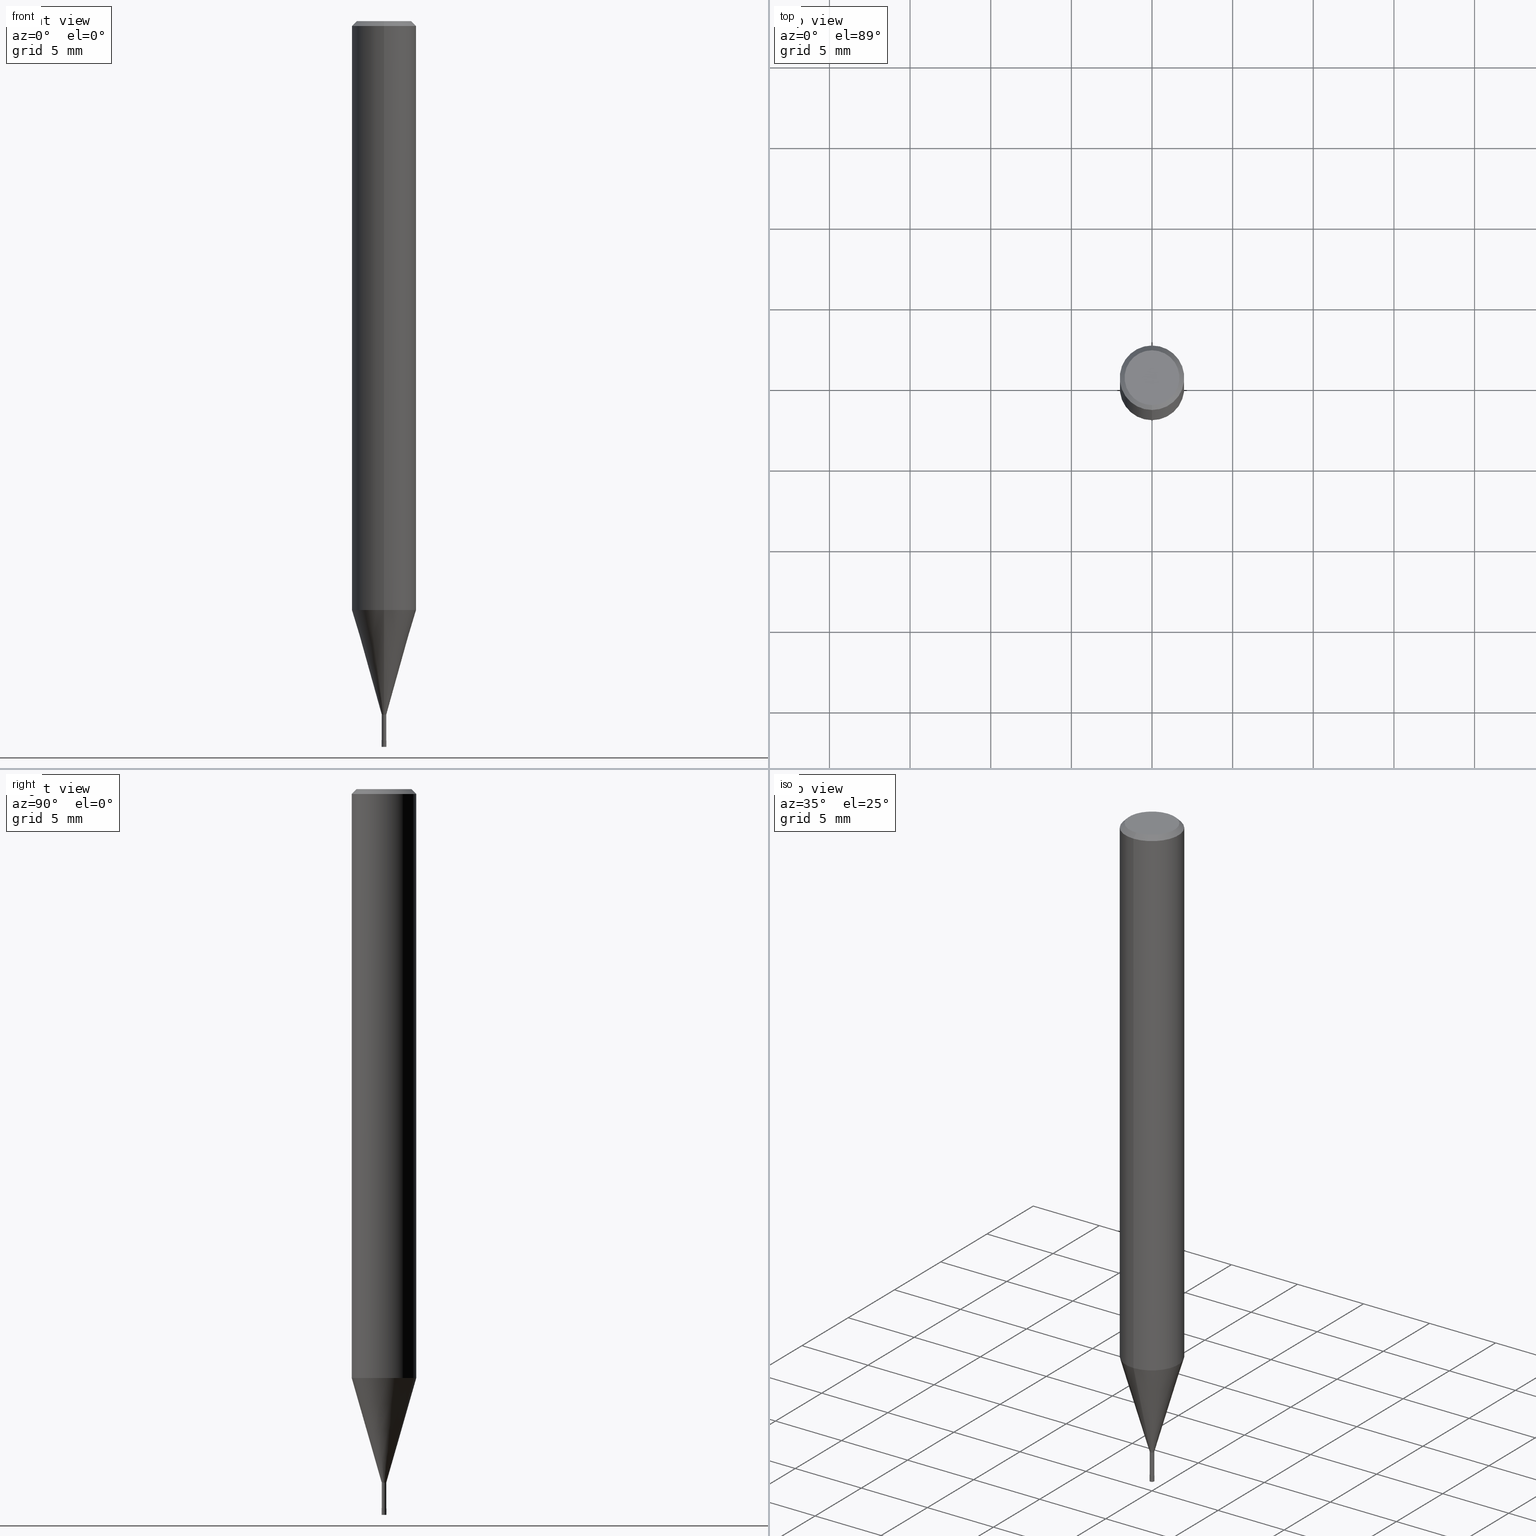
[diagram: canonical four-view strip — front | top / right | iso, engineering-drawing reading convention]
A machine part, canonical four-view strip (front | top / right | iso — engineering-drawing reading convention). The complete STEP part file that produces these views, byte-faithful:
ISO-10303-21;
HEADER;
FILE_DESCRIPTION(('no description'),'unknown implementation level');
FILE_NAME('HLS2003-020-Huellk.stp','  ',('CIMSOURCE GmbH'),('CADClick - KiM GmbH - www.kimweb.de'),'unknown preprocess','ACIS','unknown authorization');
FILE_SCHEMA(('automotive_design'));
ENDSEC;
DATA;
#1=MECHANICAL_DESIGN_GEOMETRIC_PRESENTATION_REPRESENTATION(' ',(#14,#15,#16,#17,#18,#19,#20,#21,#22,#23,#24,#25,#26,#27,#28,#29,#30,#31,#32,#33,#34,#35,#36,#37,#38,#39,#40,#41,#42,#43,#44,#45,#46,#47,#48,#49,#50,#51,#52,#53,#54,#55,#56,#57,#58,#59,#60,#61,#62,#63,#64,#65,#66,#67,#68,#69,#70,#71,#72),#10);
#2=PRODUCT_DEFINITION_CONTEXT('',#73,'design');
#3=APPLICATION_PROTOCOL_DEFINITION('INTERNATIONAL STANDARD','automotive_design',1994,#73);
#4=PRODUCT_CATEGORY_RELATIONSHIP('NONE','NONE',#74,#75);
#5=SHAPE_DEFINITION_REPRESENTATION(#76,#77);
#6=PRODUCT_DEFINITION_CONTEXT('',#78,'design');
#7=APPLICATION_PROTOCOL_DEFINITION('INTERNATIONAL STANDARD','automotive_design',1994,#78);
#8=PRODUCT_CATEGORY_RELATIONSHIP('NONE','NONE',#79,#80);
#9=SHAPE_DEFINITION_REPRESENTATION(#81,#82);
#10= (GEOMETRIC_REPRESENTATION_CONTEXT(3)GLOBAL_UNCERTAINTY_ASSIGNED_CONTEXT((#85))GLOBAL_UNIT_ASSIGNED_CONTEXT((#87,#88,#89))REPRESENTATION_CONTEXT('NONE','WORKSPACE'));
#14=STYLED_ITEM('',(#91),#92);
#15=STYLED_ITEM('',(#93),#94);
#16=STYLED_ITEM('',(#95),#96);
#17=STYLED_ITEM('',(#97),#98);
#18=STYLED_ITEM('',(#99),#100);
#19=STYLED_ITEM('',(#101),#102);
#20=STYLED_ITEM('',(#103),#104);
#21=STYLED_ITEM('',(#105),#106);
#22=STYLED_ITEM('',(#107),#108);
#23=STYLED_ITEM('',(#109),#110);
#24=STYLED_ITEM('',(#111),#112);
#25=STYLED_ITEM('',(#113),#114);
#26=STYLED_ITEM('',(#115),#116);
#27=STYLED_ITEM('',(#117),#118);
#28=STYLED_ITEM('',(#119),#120);
#29=STYLED_ITEM('',(#121),#122);
#30=STYLED_ITEM('',(#123),#124);
#31=STYLED_ITEM('',(#125),#126);
#32=STYLED_ITEM('',(#127),#128);
#33=STYLED_ITEM('',(#129),#130);
#34=STYLED_ITEM('',(#131),#132);
#35=STYLED_ITEM('',(#133),#134);
#36=STYLED_ITEM('',(#135),#136);
#37=STYLED_ITEM('',(#137),#138);
#38=STYLED_ITEM('',(#139),#140);
#39=STYLED_ITEM('',(#141),#142);
#40=STYLED_ITEM('',(#143),#144);
#41=STYLED_ITEM('',(#145),#146);
#42=STYLED_ITEM('',(#147),#148);
#43=STYLED_ITEM('',(#149),#150);
#44=STYLED_ITEM('',(#151),#152);
#45=STYLED_ITEM('',(#153),#154);
#46=STYLED_ITEM('',(#155),#156);
#47=STYLED_ITEM('',(#157),#158);
#48=STYLED_ITEM('',(#159),#160);
#49=STYLED_ITEM('',(#161),#162);
#50=STYLED_ITEM('',(#163),#164);
#51=STYLED_ITEM('',(#165),#166);
#52=STYLED_ITEM('',(#167),#168);
#53=STYLED_ITEM('',(#169),#170);
#54=STYLED_ITEM('',(#171),#172);
#55=STYLED_ITEM('',(#173),#174);
#56=STYLED_ITEM('',(#175),#176);
#57=STYLED_ITEM('',(#177),#178);
#58=STYLED_ITEM('',(#179),#180);
#59=STYLED_ITEM('',(#181),#182);
#60=STYLED_ITEM('',(#183),#184);
#61=STYLED_ITEM('',(#185),#186);
#62=STYLED_ITEM('',(#187),#188);
#63=STYLED_ITEM('',(#189),#190);
#64=STYLED_ITEM('',(#191),#192);
#65=STYLED_ITEM('',(#193),#194);
#66=STYLED_ITEM('',(#195),#196);
#67=STYLED_ITEM('',(#197),#198);
#68=STYLED_ITEM('',(#199),#200);
#69=STYLED_ITEM('',(#201),#202);
#70=STYLED_ITEM('',(#203),#204);
#71=STYLED_ITEM('',(#205),#206);
#72=STYLED_ITEM('',(#207),#208);
#73=APPLICATION_CONTEXT(' ');
#74=PRODUCT_CATEGORY('part','NONE');
#75=PRODUCT_RELATED_PRODUCT_CATEGORY('detail',' ',(#209));
#76=PRODUCT_DEFINITION_SHAPE('NONE','NONE',#210);
#77=ADVANCED_BREP_SHAPE_REPRESENTATION('1',(#202,#211),#10);
#78=APPLICATION_CONTEXT(' ');
#79=PRODUCT_CATEGORY('part','NONE');
#80=PRODUCT_RELATED_PRODUCT_CATEGORY('detail',' ',(#212));
#81=PRODUCT_DEFINITION_SHAPE('NONE','NONE',#213);
#82=ADVANCED_BREP_SHAPE_REPRESENTATION('2',(#122,#214),#10);
#85=UNCERTAINTY_MEASURE_WITH_UNIT(LENGTH_MEASURE(1.0E-006),#87,'','');
#87= (CONVERSION_BASED_UNIT('MILLIMETRE',#217)LENGTH_UNIT()NAMED_UNIT(#220));
#88= (NAMED_UNIT(#222)PLANE_ANGLE_UNIT()SI_UNIT($,.RADIAN.));
#89= (NAMED_UNIT(#222)SOLID_ANGLE_UNIT()SI_UNIT($,.STERADIAN.));
#91=PRESENTATION_STYLE_ASSIGNMENT((#228));
#92=VERTEX_POINT('',#229);
#93=PRESENTATION_STYLE_ASSIGNMENT((#230));
#94=EDGE_CURVE('',#168,#170,#231,.T.);
#95=PRESENTATION_STYLE_ASSIGNMENT((#232));
#96=EDGE_CURVE('',#92,#208,#233,.T.);
#97=PRESENTATION_STYLE_ASSIGNMENT((#234));
#98=EDGE_CURVE('',#170,#140,#235,.T.);
#99=PRESENTATION_STYLE_ASSIGNMENT((#236));
#100=EDGE_CURVE('',#166,#200,#237,.T.);
#101=PRESENTATION_STYLE_ASSIGNMENT((#238));
#102=ADVANCED_FACE('',(#239,#240),#241,.T.);
#103=PRESENTATION_STYLE_ASSIGNMENT((#242));
#104=EDGE_CURVE('',#186,#166,#243,.T.);
#105=PRESENTATION_STYLE_ASSIGNMENT((#244));
#106=EDGE_CURVE('',#160,#174,#245,.T.);
#107=PRESENTATION_STYLE_ASSIGNMENT((#246));
#108=ADVANCED_FACE('',(#247),#248,.T.);
#109=PRESENTATION_STYLE_ASSIGNMENT((#249));
#110=EDGE_CURVE('',#92,#180,#250,.T.);
#111=PRESENTATION_STYLE_ASSIGNMENT((#251));
#112=EDGE_CURVE('',#174,#160,#252,.T.);
#113=PRESENTATION_STYLE_ASSIGNMENT((#253));
#114=ADVANCED_FACE('',(#254),#255,.T.);
#115=PRESENTATION_STYLE_ASSIGNMENT((#256));
#116=ADVANCED_FACE('',(#257),#258,.T.);
#117=PRESENTATION_STYLE_ASSIGNMENT((#259));
#118=VERTEX_POINT('',#260);
#119=PRESENTATION_STYLE_ASSIGNMENT((#261));
#120=EDGE_CURVE('',#144,#180,#262,.T.);
#121=PRESENTATION_STYLE_ASSIGNMENT((#263));
#122=MANIFOLD_SOLID_BREP('2',#264);
#123=PRESENTATION_STYLE_ASSIGNMENT((#265));
#124=ADVANCED_FACE('',(#266),#267,.T.);
#125=PRESENTATION_STYLE_ASSIGNMENT((#268));
#126=ADVANCED_FACE('',(#269),#270,.T.);
#127=PRESENTATION_STYLE_ASSIGNMENT((#271));
#128=ADVANCED_FACE('',(#272),#273,.T.);
#129=PRESENTATION_STYLE_ASSIGNMENT((#274));
#130=ADVANCED_FACE('',(#275),#276,.T.);
#131=PRESENTATION_STYLE_ASSIGNMENT((#277));
#132=ADVANCED_FACE('',(#278),#279,.T.);
#133=PRESENTATION_STYLE_ASSIGNMENT((#280));
#134=ADVANCED_FACE('',(#281),#282,.T.);
#135=PRESENTATION_STYLE_ASSIGNMENT((#283));
#136=ADVANCED_FACE('',(#284),#285,.T.);
#137=PRESENTATION_STYLE_ASSIGNMENT((#286));
#138=EDGE_CURVE('',#144,#208,#287,.T.);
#139=PRESENTATION_STYLE_ASSIGNMENT((#288));
#140=VERTEX_POINT('',#289);
#141=PRESENTATION_STYLE_ASSIGNMENT((#290));
#142=EDGE_CURVE('',#118,#150,#291,.T.);
#143=PRESENTATION_STYLE_ASSIGNMENT((#292));
#144=VERTEX_POINT('',#293);
#145=PRESENTATION_STYLE_ASSIGNMENT((#294));
#146=EDGE_CURVE('',#200,#158,#295,.T.);
#147=PRESENTATION_STYLE_ASSIGNMENT((#296));
#148=EDGE_CURVE('',#180,#92,#297,.T.);
#149=PRESENTATION_STYLE_ASSIGNMENT((#298));
#150=VERTEX_POINT('',#299);
#151=PRESENTATION_STYLE_ASSIGNMENT((#300));
#152=VERTEX_POINT('',#301);
#153=PRESENTATION_STYLE_ASSIGNMENT((#302));
#154=EDGE_CURVE('',#140,#152,#303,.T.);
#155=PRESENTATION_STYLE_ASSIGNMENT((#304));
#156=EDGE_CURVE('',#140,#170,#305,.T.);
#157=PRESENTATION_STYLE_ASSIGNMENT((#306));
#158=VERTEX_POINT('',#307);
#159=PRESENTATION_STYLE_ASSIGNMENT((#308));
#160=VERTEX_POINT('',#309);
#161=PRESENTATION_STYLE_ASSIGNMENT((#310));
#162=EDGE_CURVE('',#150,#118,#311,.T.);
#163=PRESENTATION_STYLE_ASSIGNMENT((#312));
#164=EDGE_CURVE('',#208,#144,#313,.T.);
#165=PRESENTATION_STYLE_ASSIGNMENT((#314));
#166=VERTEX_POINT('',#315);
#167=PRESENTATION_STYLE_ASSIGNMENT((#316));
#168=VERTEX_POINT('',#317);
#169=PRESENTATION_STYLE_ASSIGNMENT((#318));
#170=VERTEX_POINT('',#319);
#171=PRESENTATION_STYLE_ASSIGNMENT((#320));
#172=EDGE_CURVE('',#152,#168,#321,.T.);
#173=PRESENTATION_STYLE_ASSIGNMENT((#322));
#174=VERTEX_POINT('',#323);
#175=PRESENTATION_STYLE_ASSIGNMENT((#324));
#176=ADVANCED_FACE('',(#325),#326,.T.);
#177=PRESENTATION_STYLE_ASSIGNMENT((#327));
#178=EDGE_CURVE('',#152,#160,#328,.T.);
#179=PRESENTATION_STYLE_ASSIGNMENT((#329));
#180=VERTEX_POINT('',#330);
#181=PRESENTATION_STYLE_ASSIGNMENT((#331));
#182=EDGE_CURVE('',#118,#186,#332,.T.);
#183=PRESENTATION_STYLE_ASSIGNMENT((#333));
#184=EDGE_CURVE('',#200,#166,#334,.T.);
#185=PRESENTATION_STYLE_ASSIGNMENT((#335));
#186=VERTEX_POINT('',#336);
#187=PRESENTATION_STYLE_ASSIGNMENT((#337));
#188=ADVANCED_FACE('',(#338),#339,.T.);
#189=PRESENTATION_STYLE_ASSIGNMENT((#340));
#190=EDGE_CURVE('',#186,#158,#341,.T.);
#191=PRESENTATION_STYLE_ASSIGNMENT((#342));
#192=EDGE_CURVE('',#158,#150,#343,.T.);
#193=PRESENTATION_STYLE_ASSIGNMENT((#344));
#194=EDGE_CURVE('',#168,#152,#345,.T.);
#195=PRESENTATION_STYLE_ASSIGNMENT((#346));
#196=EDGE_CURVE('',#158,#186,#347,.T.);
#197=PRESENTATION_STYLE_ASSIGNMENT((#348));
#198=ADVANCED_FACE('',(#349),#350,.T.);
#199=PRESENTATION_STYLE_ASSIGNMENT((#351));
#200=VERTEX_POINT('',#352);
#201=PRESENTATION_STYLE_ASSIGNMENT((#353));
#202=MANIFOLD_SOLID_BREP('1',#354);
#203=PRESENTATION_STYLE_ASSIGNMENT((#355));
#204=ADVANCED_FACE('',(#356),#357,.T.);
#205=PRESENTATION_STYLE_ASSIGNMENT((#358));
#206=EDGE_CURVE('',#174,#168,#359,.T.);
#207=PRESENTATION_STYLE_ASSIGNMENT((#360));
#208=VERTEX_POINT('',#361);
#209=PRODUCT('1','1','PART-1-DESC',(#362));
#210=PRODUCT_DEFINITION('NONE','NONE',#363,#2);
#211=AXIS2_PLACEMENT_3D('',#364,#365,#366);
#212=PRODUCT('2','2','PART-2-DESC',(#367));
#213=PRODUCT_DEFINITION('NONE','NONE',#368,#6);
#214=AXIS2_PLACEMENT_3D('',#369,#370,#371);
#217=LENGTH_MEASURE_WITH_UNIT(LENGTH_MEASURE(1.0),#372);
#220=DIMENSIONAL_EXPONENTS(1.0,0.0,0.0,0.0,0.0,0.0,0.0);
#222=DIMENSIONAL_EXPONENTS(0.0,0.0,0.0,0.0,0.0,0.0,0.0);
#228=POINT_STYLE(' ',#373,POSITIVE_LENGTH_MEASURE(1.0E-006),#374);
#229=CARTESIAN_POINT('',(0.0,0.1499,-44.6));
#230=CURVE_STYLE('',#375,POSITIVE_LENGTH_MEASURE(1.0E-006),#376);
#231=LINE('',#377,#378);
#232=CURVE_STYLE('',#379,POSITIVE_LENGTH_MEASURE(1.0E-006),#380);
#233=LINE('',#381,#382);
#234=CURVE_STYLE('',#383,POSITIVE_LENGTH_MEASURE(1.0E-006),#384);
#235=CIRCLE('',#385,1.7);
#236=CURVE_STYLE('',#386,POSITIVE_LENGTH_MEASURE(1.0E-006),#387);
#237=CIRCLE('',#388,0.13995);
#238=SURFACE_STYLE_USAGE(.BOTH.,#389);
#239=FACE_OUTER_BOUND('',#390,.T.);
#240=FACE_BOUND('',#391,.T.);
#241=PLANE('',#392);
#242=CURVE_STYLE('',#393,POSITIVE_LENGTH_MEASURE(1.0E-006),#394);
#243=LINE('',#395,#396);
#244=CURVE_STYLE('',#397,POSITIVE_LENGTH_MEASURE(1.0E-006),#398);
#245=CIRCLE('',#399,2.0);
#246=SURFACE_STYLE_USAGE(.BOTH.,#400);
#247=FACE_OUTER_BOUND('',#401,.T.);
#248=PLANE('',#402);
#249=CURVE_STYLE('',#403,POSITIVE_LENGTH_MEASURE(1.0E-006),#404);
#250=CIRCLE('',#405,0.1499);
#251=CURVE_STYLE('',#406,POSITIVE_LENGTH_MEASURE(1.0E-006),#407);
#252=CIRCLE('',#408,2.0);
#253=SURFACE_STYLE_USAGE(.BOTH.,#409);
#254=FACE_OUTER_BOUND('',#410,.T.);
#255=CONICAL_SURFACE('',#411,1.06995,0.27923596926092);
#256=SURFACE_STYLE_USAGE(.BOTH.,#412);
#257=FACE_OUTER_BOUND('',#413,.T.);
#258=CONICAL_SURFACE('',#414,0.14995,0.000249999994791639);
#259=POINT_STYLE(' ',#415,POSITIVE_LENGTH_MEASURE(1.0E-006),#416);
#260=CARTESIAN_POINT('',(0.0,1.99995,-36.513));
#261=CURVE_STYLE('',#417,POSITIVE_LENGTH_MEASURE(1.0E-006),#418);
#262=LINE('',#419,#420);
#263=SURFACE_STYLE_USAGE(.BOTH.,#421);
#264=CLOSED_SHELL('',(#116,#108,#134,#132));
#265=SURFACE_STYLE_USAGE(.BOTH.,#422);
#266=FACE_OUTER_BOUND('',#423,.T.);
#267=CYLINDRICAL_SURFACE('',#424,0.13995);
#268=SURFACE_STYLE_USAGE(.BOTH.,#425);
#269=FACE_OUTER_BOUND('',#426,.T.);
#270=CONICAL_SURFACE('',#427,1.85,0.785398163397453);
#271=SURFACE_STYLE_USAGE(.BOTH.,#428);
#272=FACE_OUTER_BOUND('',#429,.T.);
#273=CYLINDRICAL_SURFACE('',#430,2.0);
#274=SURFACE_STYLE_USAGE(.BOTH.,#431);
#275=FACE_OUTER_BOUND('',#432,.T.);
#276=CYLINDRICAL_SURFACE('',#433,0.13995);
#277=SURFACE_STYLE_USAGE(.BOTH.,#434);
#278=FACE_OUTER_BOUND('',#435,.T.);
#279=PLANE('',#436);
#280=SURFACE_STYLE_USAGE(.BOTH.,#437);
#281=FACE_OUTER_BOUND('',#438,.T.);
#282=CONICAL_SURFACE('',#439,0.14995,0.000249999994791639);
#283=SURFACE_STYLE_USAGE(.BOTH.,#440);
#284=FACE_OUTER_BOUND('',#441,.T.);
#285=CONICAL_SURFACE('',#442,1.06995,0.27923596926092);
#286=CURVE_STYLE('',#443,POSITIVE_LENGTH_MEASURE(1.0E-006),#444);
#287=CIRCLE('',#445,0.15);
#288=POINT_STYLE(' ',#446,POSITIVE_LENGTH_MEASURE(1.0E-006),#447);
#289=CARTESIAN_POINT('',(0.0,1.7,0.0));
#290=CURVE_STYLE('',#448,POSITIVE_LENGTH_MEASURE(1.0E-006),#449);
#291=CIRCLE('',#450,1.99995);
#292=POINT_STYLE(' ',#451,POSITIVE_LENGTH_MEASURE(1.0E-006),#452);
#293=CARTESIAN_POINT('',(1.83690953073357E-017,-0.15,-45.0));
#294=CURVE_STYLE('',#453,POSITIVE_LENGTH_MEASURE(1.0E-006),#454);
#295=LINE('',#455,#456);
#296=CURVE_STYLE('',#457,POSITIVE_LENGTH_MEASURE(1.0E-006),#458);
#297=CIRCLE('',#459,0.1499);
#298=POINT_STYLE(' ',#460,POSITIVE_LENGTH_MEASURE(1.0E-006),#461);
#299=CARTESIAN_POINT('',(2.44915147732706E-016,-1.99995,-36.513));
#300=POINT_STYLE(' ',#462,POSITIVE_LENGTH_MEASURE(1.0E-006),#463);
#301=CARTESIAN_POINT('',(0.0,2.0,-0.299999999999997));
#302=CURVE_STYLE('',#464,POSITIVE_LENGTH_MEASURE(1.0E-006),#465);
#303=LINE('',#466,#467);
#304=CURVE_STYLE('',#468,POSITIVE_LENGTH_MEASURE(1.0E-006),#469);
#305=CIRCLE('',#470,1.7);
#306=POINT_STYLE(' ',#471,POSITIVE_LENGTH_MEASURE(1.0E-006),#472);
#307=CARTESIAN_POINT('',(1.71383659217442E-017,-0.13995,-43.0));
#308=POINT_STYLE(' ',#473,POSITIVE_LENGTH_MEASURE(1.0E-006),#474);
#309=CARTESIAN_POINT('',(0.0,2.0,-36.513));
#310=CURVE_STYLE('',#475,POSITIVE_LENGTH_MEASURE(1.0E-006),#476);
#311=CIRCLE('',#477,1.99995);
#312=CURVE_STYLE('',#478,POSITIVE_LENGTH_MEASURE(1.0E-006),#479);
#313=CIRCLE('',#480,0.15);
#314=POINT_STYLE(' ',#481,POSITIVE_LENGTH_MEASURE(1.0E-006),#482);
#315=CARTESIAN_POINT('',(0.0,0.13995,-44.6));
#316=POINT_STYLE(' ',#483,POSITIVE_LENGTH_MEASURE(1.0E-006),#484);
#317=CARTESIAN_POINT('',(2.44921270764475E-016,-2.0,-0.299999999999997));
#318=POINT_STYLE(' ',#485,POSITIVE_LENGTH_MEASURE(1.0E-006),#486);
#319=CARTESIAN_POINT('',(2.08183080149804E-016,-1.7,0.0));
#320=CURVE_STYLE('',#487,POSITIVE_LENGTH_MEASURE(1.0E-006),#488);
#321=CIRCLE('',#489,2.0);
#322=POINT_STYLE(' ',#490,POSITIVE_LENGTH_MEASURE(1.0E-006),#491);
#323=CARTESIAN_POINT('',(2.44921270764475E-016,-2.0,-36.513));
#324=SURFACE_STYLE_USAGE(.BOTH.,#492);
#325=FACE_OUTER_BOUND('',#493,.T.);
#326=PLANE('',#494);
#327=CURVE_STYLE('',#495,POSITIVE_LENGTH_MEASURE(1.0E-006),#496);
#328=LINE('',#497,#498);
#329=POINT_STYLE(' ',#499,POSITIVE_LENGTH_MEASURE(1.0E-006),#500);
#330=CARTESIAN_POINT('',(1.83568492437974E-017,-0.1499,-44.6));
#331=CURVE_STYLE('',#501,POSITIVE_LENGTH_MEASURE(1.0E-006),#502);
#332=LINE('',#503,#504);
#333=CURVE_STYLE('',#505,POSITIVE_LENGTH_MEASURE(1.0E-006),#506);
#334=CIRCLE('',#507,0.13995);
#335=POINT_STYLE(' ',#508,POSITIVE_LENGTH_MEASURE(1.0E-006),#509);
#336=CARTESIAN_POINT('',(0.0,0.13995,-43.0));
#337=SURFACE_STYLE_USAGE(.BOTH.,#510);
#338=FACE_OUTER_BOUND('',#511,.T.);
#339=CONICAL_SURFACE('',#512,1.85,0.785398163397453);
#340=CURVE_STYLE('',#513,POSITIVE_LENGTH_MEASURE(1.0E-006),#514);
#341=CIRCLE('',#515,0.13995);
#342=CURVE_STYLE('',#516,POSITIVE_LENGTH_MEASURE(1.0E-006),#517);
#343=LINE('',#518,#519);
#344=CURVE_STYLE('',#520,POSITIVE_LENGTH_MEASURE(1.0E-006),#521);
#345=CIRCLE('',#522,2.0);
#346=CURVE_STYLE('',#523,POSITIVE_LENGTH_MEASURE(1.0E-006),#524);
#347=CIRCLE('',#525,0.13995);
#348=SURFACE_STYLE_USAGE(.BOTH.,#526);
#349=FACE_OUTER_BOUND('',#527,.T.);
#350=CYLINDRICAL_SURFACE('',#528,2.0);
#351=POINT_STYLE(' ',#529,POSITIVE_LENGTH_MEASURE(1.0E-006),#530);
#352=CARTESIAN_POINT('',(1.71383659217442E-017,-0.13995,-44.6));
#353=SURFACE_STYLE_USAGE(.BOTH.,#531);
#354=CLOSED_SHELL('',(#124,#136,#128,#188,#102,#176,#126,#198,#114,#130,#204));
#355=SURFACE_STYLE_USAGE(.BOTH.,#532);
#356=FACE_OUTER_BOUND('',#533,.T.);
#357=PLANE('',#534);
#358=CURVE_STYLE('',#535,POSITIVE_LENGTH_MEASURE(1.0E-006),#536);
#359=LINE('',#537,#538);
#360=POINT_STYLE(' ',#539,POSITIVE_LENGTH_MEASURE(1.0E-006),#540);
#361=CARTESIAN_POINT('',(0.0,0.15,-45.0));
#362=PRODUCT_CONTEXT('',#73,'mechanical');
#363=PRODUCT_DEFINITION_FORMATION_WITH_SPECIFIED_SOURCE(' ','NONE',#209,.NOT_KNOWN.);
#364=CARTESIAN_POINT('',(0.0,0.0,0.0));
#365=DIRECTION('',(0.0,0.0,1.0));
#366=DIRECTION('',(1.0,0.0,0.0));
#367=PRODUCT_CONTEXT('',#78,'mechanical');
#368=PRODUCT_DEFINITION_FORMATION_WITH_SPECIFIED_SOURCE(' ','NONE',#212,.NOT_KNOWN.);
#369=CARTESIAN_POINT('',(0.0,0.0,0.0));
#370=DIRECTION('',(0.0,0.0,1.0));
#371=DIRECTION('',(1.0,0.0,0.0));
#372= (NAMED_UNIT(#220)LENGTH_UNIT()SI_UNIT(.MILLI.,.METRE.));
#373=PRE_DEFINED_MARKER('');
#374=COLOUR_RGB('',0.800000011920929,0.800000011920929,0.800000011920929);
#375=DRAUGHTING_PRE_DEFINED_CURVE_FONT('continuous');
#376=COLOUR_RGB('',0.498039215803146,0.498039215803146,0.498039215803146);
#377=CARTESIAN_POINT('',(2.2655217545714E-016,-1.85,-0.149999999999999));
#378=VECTOR('',#542,1.0);
#379=DRAUGHTING_PRE_DEFINED_CURVE_FONT('continuous');
#380=COLOUR_RGB('',0.800000011920929,0.800000011920929,0.800000011920929);
#381=CARTESIAN_POINT('',(-1.83629722755665E-017,0.14995,-44.8));
#382=VECTOR('',#543,1.0);
#383=DRAUGHTING_PRE_DEFINED_CURVE_FONT('continuous');
#384=COLOUR_RGB('',0.498039215803146,0.498039215803146,0.498039215803146);
#385=AXIS2_PLACEMENT_3D('',#544,#545,#546);
#386=DRAUGHTING_PRE_DEFINED_CURVE_FONT('continuous');
#387=COLOUR_RGB('',0.498039215803146,0.498039215803146,0.498039215803146);
#388=AXIS2_PLACEMENT_3D('',#547,#548,#549);
#389=SURFACE_SIDE_STYLE('',(#550));
#390=EDGE_LOOP('',(#551,#552));
#391=EDGE_LOOP('',(#553,#554));
#392=AXIS2_PLACEMENT_3D('',#555,#556,#557);
#393=DRAUGHTING_PRE_DEFINED_CURVE_FONT('continuous');
#394=COLOUR_RGB('',0.498039215803146,0.498039215803146,0.498039215803146);
#395=CARTESIAN_POINT('',(-1.71383659217442E-017,0.13995,-43.8));
#396=VECTOR('',#558,1.0);
#397=DRAUGHTING_PRE_DEFINED_CURVE_FONT('continuous');
#398=COLOUR_RGB('',0.498039215803146,0.498039215803146,0.498039215803146);
#399=AXIS2_PLACEMENT_3D('',#559,#560,#561);
#400=SURFACE_SIDE_STYLE('',(#562));
#401=EDGE_LOOP('',(#563,#564));
#402=AXIS2_PLACEMENT_3D('',#565,#566,#567);
#403=DRAUGHTING_PRE_DEFINED_CURVE_FONT('continuous');
#404=COLOUR_RGB('',0.800000011920929,0.800000011920929,0.800000011920929);
#405=AXIS2_PLACEMENT_3D('',#568,#569,#570);
#406=DRAUGHTING_PRE_DEFINED_CURVE_FONT('continuous');
#407=COLOUR_RGB('',0.498039215803146,0.498039215803146,0.498039215803146);
#408=AXIS2_PLACEMENT_3D('',#571,#572,#573);
#409=SURFACE_SIDE_STYLE('',(#574));
#410=EDGE_LOOP('',(#575,#576,#577,#578));
#411=AXIS2_PLACEMENT_3D('',#579,#580,#581);
#412=SURFACE_SIDE_STYLE('',(#582));
#413=EDGE_LOOP('',(#583,#584,#585,#586));
#414=AXIS2_PLACEMENT_3D('',#587,#588,#589);
#415=PRE_DEFINED_MARKER('');
#416=COLOUR_RGB('',0.498039215803146,0.498039215803146,0.498039215803146);
#417=DRAUGHTING_PRE_DEFINED_CURVE_FONT('continuous');
#418=COLOUR_RGB('',0.800000011920929,0.800000011920929,0.800000011920929);
#419=CARTESIAN_POINT('',(1.83629722755665E-017,-0.14995,-44.8));
#420=VECTOR('',#590,1.0);
#421=SURFACE_SIDE_STYLE('',(#591));
#422=SURFACE_SIDE_STYLE('',(#592));
#423=EDGE_LOOP('',(#593,#594,#595,#596));
#424=AXIS2_PLACEMENT_3D('',#597,#598,#599);
#425=SURFACE_SIDE_STYLE('',(#600));
#426=EDGE_LOOP('',(#601,#602,#603,#604));
#427=AXIS2_PLACEMENT_3D('',#605,#606,#607);
#428=SURFACE_SIDE_STYLE('',(#608));
#429=EDGE_LOOP('',(#609,#610,#611,#612));
#430=AXIS2_PLACEMENT_3D('',#613,#614,#615);
#431=SURFACE_SIDE_STYLE('',(#616));
#432=EDGE_LOOP('',(#617,#618,#619,#620));
#433=AXIS2_PLACEMENT_3D('',#621,#622,#623);
#434=SURFACE_SIDE_STYLE('',(#624));
#435=EDGE_LOOP('',(#625,#626));
#436=AXIS2_PLACEMENT_3D('',#627,#628,#629);
#437=SURFACE_SIDE_STYLE('',(#630));
#438=EDGE_LOOP('',(#631,#632,#633,#634));
#439=AXIS2_PLACEMENT_3D('',#635,#636,#637);
#440=SURFACE_SIDE_STYLE('',(#638));
#441=EDGE_LOOP('',(#639,#640,#641,#642));
#442=AXIS2_PLACEMENT_3D('',#643,#644,#645);
#443=DRAUGHTING_PRE_DEFINED_CURVE_FONT('continuous');
#444=COLOUR_RGB('',0.800000011920929,0.800000011920929,0.800000011920929);
#445=AXIS2_PLACEMENT_3D('',#646,#647,#648);
#446=PRE_DEFINED_MARKER('');
#447=COLOUR_RGB('',0.498039215803146,0.498039215803146,0.498039215803146);
#448=DRAUGHTING_PRE_DEFINED_CURVE_FONT('continuous');
#449=COLOUR_RGB('',0.498039215803146,0.498039215803146,0.498039215803146);
#450=AXIS2_PLACEMENT_3D('',#649,#650,#651);
#451=PRE_DEFINED_MARKER('');
#452=COLOUR_RGB('',0.800000011920929,0.800000011920929,0.800000011920929);
#453=DRAUGHTING_PRE_DEFINED_CURVE_FONT('continuous');
#454=COLOUR_RGB('',0.498039215803146,0.498039215803146,0.498039215803146);
#455=CARTESIAN_POINT('',(1.71383659217442E-017,-0.13995,-43.8));
#456=VECTOR('',#652,1.0);
#457=DRAUGHTING_PRE_DEFINED_CURVE_FONT('continuous');
#458=COLOUR_RGB('',0.800000011920929,0.800000011920929,0.800000011920929);
#459=AXIS2_PLACEMENT_3D('',#653,#654,#655);
#460=PRE_DEFINED_MARKER('');
#461=COLOUR_RGB('',0.498039215803146,0.498039215803146,0.498039215803146);
#462=PRE_DEFINED_MARKER('');
#463=COLOUR_RGB('',0.498039215803146,0.498039215803146,0.498039215803146);
#464=DRAUGHTING_PRE_DEFINED_CURVE_FONT('continuous');
#465=COLOUR_RGB('',0.498039215803146,0.498039215803146,0.498039215803146);
#466=CARTESIAN_POINT('',(-2.2655217545714E-016,1.85,-0.149999999999999));
#467=VECTOR('',#656,1.0);
#468=DRAUGHTING_PRE_DEFINED_CURVE_FONT('continuous');
#469=COLOUR_RGB('',0.498039215803146,0.498039215803146,0.498039215803146);
#470=AXIS2_PLACEMENT_3D('',#657,#658,#659);
#471=PRE_DEFINED_MARKER('');
#472=COLOUR_RGB('',0.498039215803146,0.498039215803146,0.498039215803146);
#473=PRE_DEFINED_MARKER('');
#474=COLOUR_RGB('',0.498039215803146,0.498039215803146,0.498039215803146);
#475=DRAUGHTING_PRE_DEFINED_CURVE_FONT('continuous');
#476=COLOUR_RGB('',0.498039215803146,0.498039215803146,0.498039215803146);
#477=AXIS2_PLACEMENT_3D('',#660,#661,#662);
#478=DRAUGHTING_PRE_DEFINED_CURVE_FONT('continuous');
#479=COLOUR_RGB('',0.800000011920929,0.800000011920929,0.800000011920929);
#480=AXIS2_PLACEMENT_3D('',#663,#664,#665);
#481=PRE_DEFINED_MARKER('');
#482=COLOUR_RGB('',0.498039215803146,0.498039215803146,0.498039215803146);
#483=PRE_DEFINED_MARKER('');
#484=COLOUR_RGB('',0.498039215803146,0.498039215803146,0.498039215803146);
#485=PRE_DEFINED_MARKER('');
#486=COLOUR_RGB('',0.498039215803146,0.498039215803146,0.498039215803146);
#487=DRAUGHTING_PRE_DEFINED_CURVE_FONT('continuous');
#488=COLOUR_RGB('',0.498039215803146,0.498039215803146,0.498039215803146);
#489=AXIS2_PLACEMENT_3D('',#666,#667,#668);
#490=PRE_DEFINED_MARKER('');
#491=COLOUR_RGB('',0.498039215803146,0.498039215803146,0.498039215803146);
#492=SURFACE_SIDE_STYLE('',(#669));
#493=EDGE_LOOP('',(#670,#671));
#494=AXIS2_PLACEMENT_3D('',#672,#673,#674);
#495=DRAUGHTING_PRE_DEFINED_CURVE_FONT('continuous');
#496=COLOUR_RGB('',0.498039215803146,0.498039215803146,0.498039215803146);
#497=CARTESIAN_POINT('',(-2.44921270764475E-016,2.0,-18.4065));
#498=VECTOR('',#675,1.0);
#499=PRE_DEFINED_MARKER('');
#500=COLOUR_RGB('',0.800000011920929,0.800000011920929,0.800000011920929);
#501=DRAUGHTING_PRE_DEFINED_CURVE_FONT('continuous');
#502=COLOUR_RGB('',0.498039215803146,0.498039215803146,0.498039215803146);
#503=CARTESIAN_POINT('',(-1.31026756827225E-016,1.06995,-39.7565));
#504=VECTOR('',#676,1.0);
#505=DRAUGHTING_PRE_DEFINED_CURVE_FONT('continuous');
#506=COLOUR_RGB('',0.498039215803146,0.498039215803146,0.498039215803146);
#507=AXIS2_PLACEMENT_3D('',#677,#678,#679);
#508=PRE_DEFINED_MARKER('');
#509=COLOUR_RGB('',0.498039215803146,0.498039215803146,0.498039215803146);
#510=SURFACE_SIDE_STYLE('',(#680));
#511=EDGE_LOOP('',(#681,#682,#683,#684));
#512=AXIS2_PLACEMENT_3D('',#685,#686,#687);
#513=DRAUGHTING_PRE_DEFINED_CURVE_FONT('continuous');
#514=COLOUR_RGB('',0.498039215803146,0.498039215803146,0.498039215803146);
#515=AXIS2_PLACEMENT_3D('',#688,#689,#690);
#516=DRAUGHTING_PRE_DEFINED_CURVE_FONT('continuous');
#517=COLOUR_RGB('',0.498039215803146,0.498039215803146,0.498039215803146);
#518=CARTESIAN_POINT('',(1.31026756827225E-016,-1.06995,-39.7565));
#519=VECTOR('',#691,1.0);
#520=DRAUGHTING_PRE_DEFINED_CURVE_FONT('continuous');
#521=COLOUR_RGB('',0.498039215803146,0.498039215803146,0.498039215803146);
#522=AXIS2_PLACEMENT_3D('',#692,#693,#694);
#523=DRAUGHTING_PRE_DEFINED_CURVE_FONT('continuous');
#524=COLOUR_RGB('',0.498039215803146,0.498039215803146,0.498039215803146);
#525=AXIS2_PLACEMENT_3D('',#695,#696,#697);
#526=SURFACE_SIDE_STYLE('',(#698));
#527=EDGE_LOOP('',(#699,#700,#701,#702));
#528=AXIS2_PLACEMENT_3D('',#703,#704,#705);
#529=PRE_DEFINED_MARKER('');
#530=COLOUR_RGB('',0.498039215803146,0.498039215803146,0.498039215803146);
#531=SURFACE_SIDE_STYLE('',(#706));
#532=SURFACE_SIDE_STYLE('',(#707));
#533=EDGE_LOOP('',(#708,#709));
#534=AXIS2_PLACEMENT_3D('',#710,#711,#712);
#535=DRAUGHTING_PRE_DEFINED_CURVE_FONT('continuous');
#536=COLOUR_RGB('',0.498039215803146,0.498039215803146,0.498039215803146);
#537=CARTESIAN_POINT('',(2.44921270764475E-016,-2.0,-18.4065));
#538=VECTOR('',#713,1.0);
#539=PRE_DEFINED_MARKER('');
#540=COLOUR_RGB('',0.800000011920929,0.800000011920929,0.800000011920929);
#542=DIRECTION('',(-8.6592745707194E-017,0.707106781186551,0.707106781186544));
#543=DIRECTION('',(-3.06151578888324E-020,0.000249999992187473,-0.999999968750002));
#544=CARTESIAN_POINT('',(0.0,0.0,0.0));
#545=DIRECTION('',(0.0,0.0,-1.0));
#546=DIRECTION('',(0.0,1.0,0.0));
#547=CARTESIAN_POINT('',(0.0,0.0,-44.6));
#548=DIRECTION('',(0.0,0.0,-1.0));
#549=DIRECTION('',(0.0,1.0,0.0));
#550=SURFACE_STYLE_FILL_AREA(#714);
#551=ORIENTED_EDGE('',*,*,#106,.T.);
#552=ORIENTED_EDGE('',*,*,#112,.T.);
#553=ORIENTED_EDGE('',*,*,#142,.F.);
#554=ORIENTED_EDGE('',*,*,#162,.F.);
#555=CARTESIAN_POINT('',(0.0,1.0,-36.513));
#556=DIRECTION('',(0.0,0.0,-1.0));
#557=DIRECTION('',(0.0,1.0,0.0));
#558=DIRECTION('',(0.0,0.0,-1.0));
#559=CARTESIAN_POINT('',(0.0,0.0,-36.513));
#560=DIRECTION('',(0.0,0.0,-1.0));
#561=DIRECTION('',(0.0,1.0,0.0));
#562=SURFACE_STYLE_FILL_AREA(#715);
#563=ORIENTED_EDGE('',*,*,#110,.F.);
#564=ORIENTED_EDGE('',*,*,#148,.F.);
#565=CARTESIAN_POINT('',(0.0,0.07495,-44.6));
#566=DIRECTION('',(-0.0,0.0,1.0));
#567=DIRECTION('',(0.0,-1.0,0.0));
#568=CARTESIAN_POINT('',(0.0,0.0,-44.6));
#569=DIRECTION('',(0.0,0.0,-1.0));
#570=DIRECTION('',(0.0,1.0,0.0));
#571=CARTESIAN_POINT('',(0.0,0.0,-36.513));
#572=DIRECTION('',(0.0,0.0,-1.0));
#573=DIRECTION('',(0.0,1.0,0.0));
#574=SURFACE_STYLE_FILL_AREA(#716);
#575=ORIENTED_EDGE('',*,*,#182,.T.);
#576=ORIENTED_EDGE('',*,*,#196,.F.);
#577=ORIENTED_EDGE('',*,*,#192,.T.);
#578=ORIENTED_EDGE('',*,*,#162,.T.);
#579=CARTESIAN_POINT('',(0.0,0.0,-39.7565));
#580=DIRECTION('',(-0.0,-0.0,1.0));
#581=DIRECTION('',(0.0,1.0,0.0));
#582=SURFACE_STYLE_FILL_AREA(#717);
#583=ORIENTED_EDGE('',*,*,#96,.F.);
#584=ORIENTED_EDGE('',*,*,#110,.T.);
#585=ORIENTED_EDGE('',*,*,#120,.F.);
#586=ORIENTED_EDGE('',*,*,#164,.F.);
#587=CARTESIAN_POINT('',(0.0,0.0,-44.8));
#588=DIRECTION('',(0.0,-0.0,-1.0));
#589=DIRECTION('',(0.0,1.0,0.0));
#590=DIRECTION('',(-3.06151578888324E-020,0.000249999992187473,0.999999968750002));
#591=SURFACE_STYLE_FILL_AREA(#718);
#592=SURFACE_STYLE_FILL_AREA(#719);
#593=ORIENTED_EDGE('',*,*,#104,.F.);
#594=ORIENTED_EDGE('',*,*,#190,.T.);
#595=ORIENTED_EDGE('',*,*,#146,.F.);
#596=ORIENTED_EDGE('',*,*,#100,.F.);
#597=CARTESIAN_POINT('',(0.0,0.0,-43.8));
#598=DIRECTION('',(-0.0,-0.0,1.0));
#599=DIRECTION('',(0.0,1.0,0.0));
#600=SURFACE_STYLE_FILL_AREA(#720);
#601=ORIENTED_EDGE('',*,*,#154,.T.);
#602=ORIENTED_EDGE('',*,*,#194,.F.);
#603=ORIENTED_EDGE('',*,*,#94,.T.);
#604=ORIENTED_EDGE('',*,*,#98,.T.);
#605=CARTESIAN_POINT('',(0.0,0.0,-0.149999999999999));
#606=DIRECTION('',(0.0,-0.0,-1.0));
#607=DIRECTION('',(0.0,1.0,0.0));
#608=SURFACE_STYLE_FILL_AREA(#721);
#609=ORIENTED_EDGE('',*,*,#178,.F.);
#610=ORIENTED_EDGE('',*,*,#172,.T.);
#611=ORIENTED_EDGE('',*,*,#206,.F.);
#612=ORIENTED_EDGE('',*,*,#106,.F.);
#613=CARTESIAN_POINT('',(0.0,0.0,-18.4065));
#614=DIRECTION('',(-0.0,-0.0,1.0));
#615=DIRECTION('',(0.0,1.0,0.0));
#616=SURFACE_STYLE_FILL_AREA(#722);
#617=ORIENTED_EDGE('',*,*,#104,.T.);
#618=ORIENTED_EDGE('',*,*,#184,.F.);
#619=ORIENTED_EDGE('',*,*,#146,.T.);
#620=ORIENTED_EDGE('',*,*,#196,.T.);
#621=CARTESIAN_POINT('',(0.0,0.0,-43.8));
#622=DIRECTION('',(-0.0,-0.0,1.0));
#623=DIRECTION('',(0.0,1.0,0.0));
#624=SURFACE_STYLE_FILL_AREA(#723);
#625=ORIENTED_EDGE('',*,*,#164,.T.);
#626=ORIENTED_EDGE('',*,*,#138,.T.);
#627=CARTESIAN_POINT('',(0.0,0.0725,-45.0));
#628=DIRECTION('',(0.0,0.0,-1.0));
#629=DIRECTION('',(0.0,1.0,0.0));
#630=SURFACE_STYLE_FILL_AREA(#724);
#631=ORIENTED_EDGE('',*,*,#96,.T.);
#632=ORIENTED_EDGE('',*,*,#138,.F.);
#633=ORIENTED_EDGE('',*,*,#120,.T.);
#634=ORIENTED_EDGE('',*,*,#148,.T.);
#635=CARTESIAN_POINT('',(0.0,0.0,-44.8));
#636=DIRECTION('',(0.0,-0.0,-1.0));
#637=DIRECTION('',(0.0,1.0,0.0));
#638=SURFACE_STYLE_FILL_AREA(#725);
#639=ORIENTED_EDGE('',*,*,#182,.F.);
#640=ORIENTED_EDGE('',*,*,#142,.T.);
#641=ORIENTED_EDGE('',*,*,#192,.F.);
#642=ORIENTED_EDGE('',*,*,#190,.F.);
#643=CARTESIAN_POINT('',(0.0,0.0,-39.7565));
#644=DIRECTION('',(-0.0,-0.0,1.0));
#645=DIRECTION('',(0.0,1.0,0.0));
#646=CARTESIAN_POINT('',(0.0,0.0,-45.0));
#647=DIRECTION('',(0.0,0.0,-1.0));
#648=DIRECTION('',(0.0,1.0,0.0));
#649=CARTESIAN_POINT('',(0.0,0.0,-36.513));
#650=DIRECTION('',(0.0,0.0,-1.0));
#651=DIRECTION('',(0.0,1.0,0.0));
#652=DIRECTION('',(-0.0,-0.0,1.0));
#653=CARTESIAN_POINT('',(0.0,0.0,-44.6));
#654=DIRECTION('',(0.0,0.0,-1.0));
#655=DIRECTION('',(0.0,1.0,0.0));
#656=DIRECTION('',(-8.6592745707194E-017,0.707106781186551,-0.707106781186544));
#657=CARTESIAN_POINT('',(0.0,0.0,0.0));
#658=DIRECTION('',(0.0,0.0,-1.0));
#659=DIRECTION('',(0.0,1.0,0.0));
#660=CARTESIAN_POINT('',(0.0,0.0,-36.513));
#661=DIRECTION('',(0.0,0.0,-1.0));
#662=DIRECTION('',(0.0,1.0,0.0));
#663=CARTESIAN_POINT('',(0.0,0.0,-45.0));
#664=DIRECTION('',(0.0,0.0,-1.0));
#665=DIRECTION('',(0.0,1.0,0.0));
#666=CARTESIAN_POINT('',(0.0,0.0,-0.299999999999997));
#667=DIRECTION('',(0.0,0.0,-1.0));
#668=DIRECTION('',(0.0,1.0,0.0));
#669=SURFACE_STYLE_FILL_AREA(#726);
#670=ORIENTED_EDGE('',*,*,#156,.F.);
#671=ORIENTED_EDGE('',*,*,#98,.F.);
#672=CARTESIAN_POINT('',(0.0,0.85,0.0));
#673=DIRECTION('',(-0.0,0.0,1.0));
#674=DIRECTION('',(0.0,-1.0,0.0));
#675=DIRECTION('',(0.0,0.0,-1.0));
#676=DIRECTION('',(3.37527585527933E-017,-0.275621292078393,-0.961266301995986));
#677=CARTESIAN_POINT('',(0.0,0.0,-44.6));
#678=DIRECTION('',(0.0,0.0,-1.0));
#679=DIRECTION('',(0.0,1.0,0.0));
#680=SURFACE_STYLE_FILL_AREA(#727);
#681=ORIENTED_EDGE('',*,*,#154,.F.);
#682=ORIENTED_EDGE('',*,*,#156,.T.);
#683=ORIENTED_EDGE('',*,*,#94,.F.);
#684=ORIENTED_EDGE('',*,*,#172,.F.);
#685=CARTESIAN_POINT('',(0.0,0.0,-0.149999999999999));
#686=DIRECTION('',(0.0,-0.0,-1.0));
#687=DIRECTION('',(0.0,1.0,0.0));
#688=CARTESIAN_POINT('',(0.0,0.0,-43.0));
#689=DIRECTION('',(0.0,0.0,-1.0));
#690=DIRECTION('',(0.0,1.0,0.0));
#691=DIRECTION('',(3.37527585527934E-017,-0.275621292078393,0.961266301995986));
#692=CARTESIAN_POINT('',(0.0,0.0,-0.299999999999997));
#693=DIRECTION('',(0.0,0.0,-1.0));
#694=DIRECTION('',(0.0,1.0,0.0));
#695=CARTESIAN_POINT('',(0.0,0.0,-43.0));
#696=DIRECTION('',(0.0,0.0,-1.0));
#697=DIRECTION('',(0.0,1.0,0.0));
#698=SURFACE_STYLE_FILL_AREA(#728);
#699=ORIENTED_EDGE('',*,*,#178,.T.);
#700=ORIENTED_EDGE('',*,*,#112,.F.);
#701=ORIENTED_EDGE('',*,*,#206,.T.);
#702=ORIENTED_EDGE('',*,*,#194,.T.);
#703=CARTESIAN_POINT('',(0.0,0.0,-18.4065));
#704=DIRECTION('',(-0.0,-0.0,1.0));
#705=DIRECTION('',(0.0,1.0,0.0));
#706=SURFACE_STYLE_FILL_AREA(#729);
#707=SURFACE_STYLE_FILL_AREA(#730);
#708=ORIENTED_EDGE('',*,*,#100,.T.);
#709=ORIENTED_EDGE('',*,*,#184,.T.);
#710=CARTESIAN_POINT('',(0.0,0.069975,-44.6));
#711=DIRECTION('',(0.0,0.0,-1.0));
#712=DIRECTION('',(0.0,1.0,0.0));
#713=DIRECTION('',(-0.0,-0.0,1.0));
#714=FILL_AREA_STYLE('',(#731));
#715=FILL_AREA_STYLE('',(#732));
#716=FILL_AREA_STYLE('',(#733));
#717=FILL_AREA_STYLE('',(#734));
#718=FILL_AREA_STYLE('',(#735));
#719=FILL_AREA_STYLE('',(#736));
#720=FILL_AREA_STYLE('',(#737));
#721=FILL_AREA_STYLE('',(#738));
#722=FILL_AREA_STYLE('',(#739));
#723=FILL_AREA_STYLE('',(#740));
#724=FILL_AREA_STYLE('',(#741));
#725=FILL_AREA_STYLE('',(#742));
#726=FILL_AREA_STYLE('',(#743));
#727=FILL_AREA_STYLE('',(#744));
#728=FILL_AREA_STYLE('',(#745));
#729=FILL_AREA_STYLE('',(#746));
#730=FILL_AREA_STYLE('',(#747));
#731=FILL_AREA_STYLE_COLOUR('',#748);
#732=FILL_AREA_STYLE_COLOUR('',#749);
#733=FILL_AREA_STYLE_COLOUR('',#750);
#734=FILL_AREA_STYLE_COLOUR('',#751);
#735=FILL_AREA_STYLE_COLOUR('',#752);
#736=FILL_AREA_STYLE_COLOUR('',#753);
#737=FILL_AREA_STYLE_COLOUR('',#754);
#738=FILL_AREA_STYLE_COLOUR('',#755);
#739=FILL_AREA_STYLE_COLOUR('',#756);
#740=FILL_AREA_STYLE_COLOUR('',#757);
#741=FILL_AREA_STYLE_COLOUR('',#758);
#742=FILL_AREA_STYLE_COLOUR('',#759);
#743=FILL_AREA_STYLE_COLOUR('',#760);
#744=FILL_AREA_STYLE_COLOUR('',#761);
#745=FILL_AREA_STYLE_COLOUR('',#762);
#746=FILL_AREA_STYLE_COLOUR('',#763);
#747=FILL_AREA_STYLE_COLOUR('',#764);
#748=COLOUR_RGB('',0.498039215803146,0.498039215803146,0.498039215803146);
#749=COLOUR_RGB('',0.800000011920929,0.800000011920929,0.800000011920929);
#750=COLOUR_RGB('',0.498039215803146,0.498039215803146,0.498039215803146);
#751=COLOUR_RGB('',0.800000011920929,0.800000011920929,0.800000011920929);
#752=COLOUR_RGB('',0.800000011920929,0.800000011920929,0.800000011920929);
#753=COLOUR_RGB('',0.498039215803146,0.498039215803146,0.498039215803146);
#754=COLOUR_RGB('',0.498039215803146,0.498039215803146,0.498039215803146);
#755=COLOUR_RGB('',0.498039215803146,0.498039215803146,0.498039215803146);
#756=COLOUR_RGB('',0.498039215803146,0.498039215803146,0.498039215803146);
#757=COLOUR_RGB('',0.800000011920929,0.800000011920929,0.800000011920929);
#758=COLOUR_RGB('',0.800000011920929,0.800000011920929,0.800000011920929);
#759=COLOUR_RGB('',0.498039215803146,0.498039215803146,0.498039215803146);
#760=COLOUR_RGB('',0.498039215803146,0.498039215803146,0.498039215803146);
#761=COLOUR_RGB('',0.498039215803146,0.498039215803146,0.498039215803146);
#762=COLOUR_RGB('',0.498039215803146,0.498039215803146,0.498039215803146);
#763=COLOUR_RGB('',0.498039215803146,0.498039215803146,0.498039215803146);
#764=COLOUR_RGB('',0.498039215803146,0.498039215803146,0.498039215803146);
#765=AXIS2_PLACEMENT_3D('PCS',#766,#767,#768);
#766=CARTESIAN_POINT('',(0.0,0.0,0.0));
#767=DIRECTION('',(0.0,0.0,1.0));
#768=DIRECTION('',(1.0,0.0,0.0));
#769=AXIS2_PLACEMENT_3D('CIP',#770,#771,#772);
#770=CARTESIAN_POINT('',(0.0,0.0,-45.0));
#771=DIRECTION('',(0.0,0.0,1.0));
#772=DIRECTION('',(1.0,0.0,0.0));
#773=AXIS2_PLACEMENT_3D('CRP',#774,#775,#776);
#774=CARTESIAN_POINT('',(-0.15,0.0,-45.0));
#775=DIRECTION('',(0.0,0.0,1.0));
#776=DIRECTION('',(1.0,0.0,0.0));
#777=AXIS2_PLACEMENT_3D('MCS',#778,#779,#780);
#778=CARTESIAN_POINT('',(0.0,0.0,-36.513));
#779=DIRECTION('',(0.0,0.0,1.0));
#780=DIRECTION('',(1.0,0.0,0.0));
#781=CONSTRUCTIVE_GEOMETRY_REPRESENTATION_RELATIONSHIP('coordinate systems',$,#77,#782);
#782=CONSTRUCTIVE_GEOMETRY_REPRESENTATION('coordinate systems',(#765,#769,#773,#777),#10);
ENDSEC;
END-ISO-10303-21;
